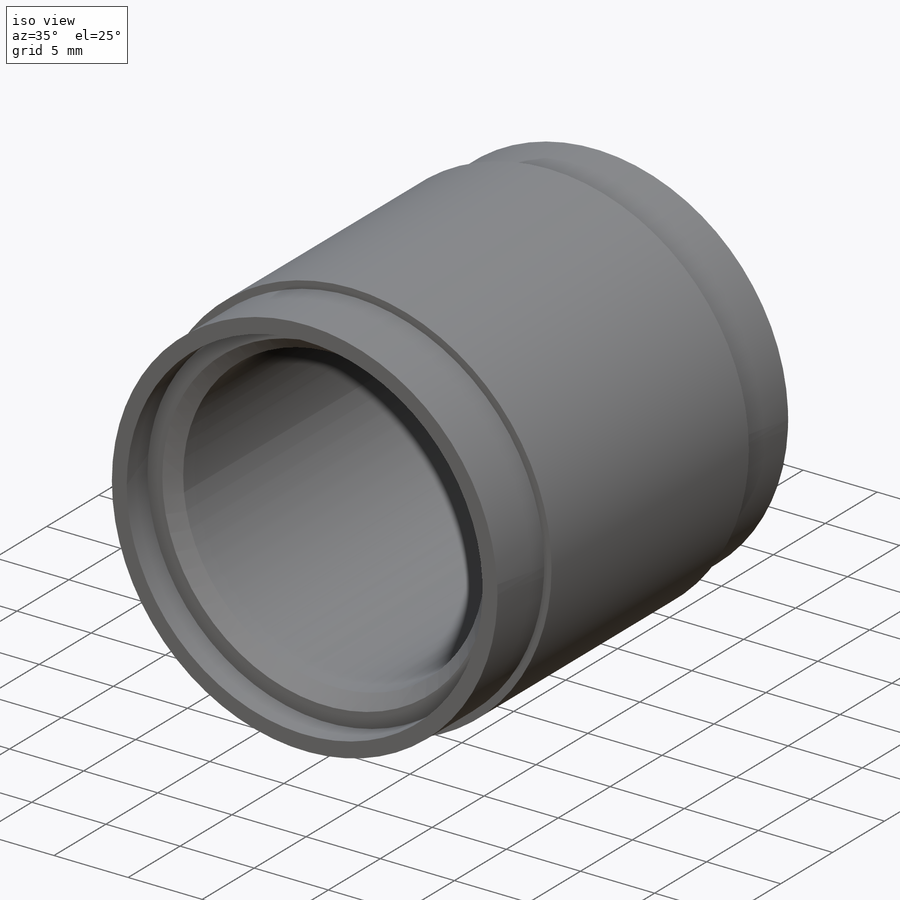
[diagram: iso view]
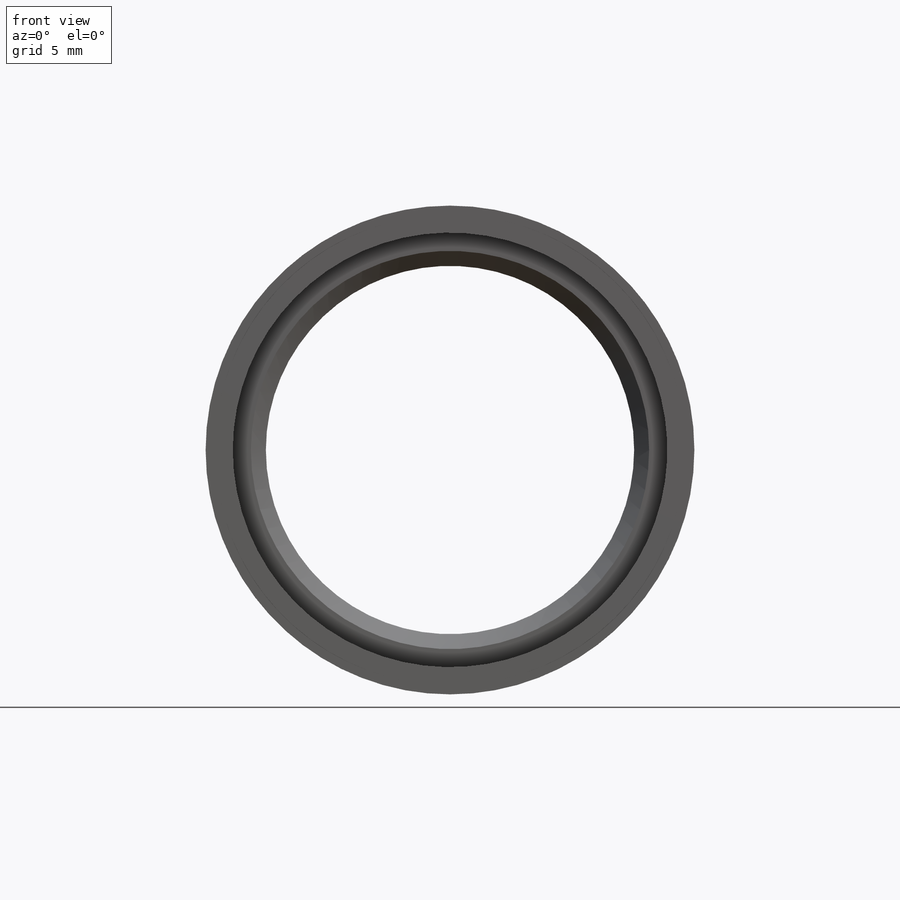
[diagram: front view]
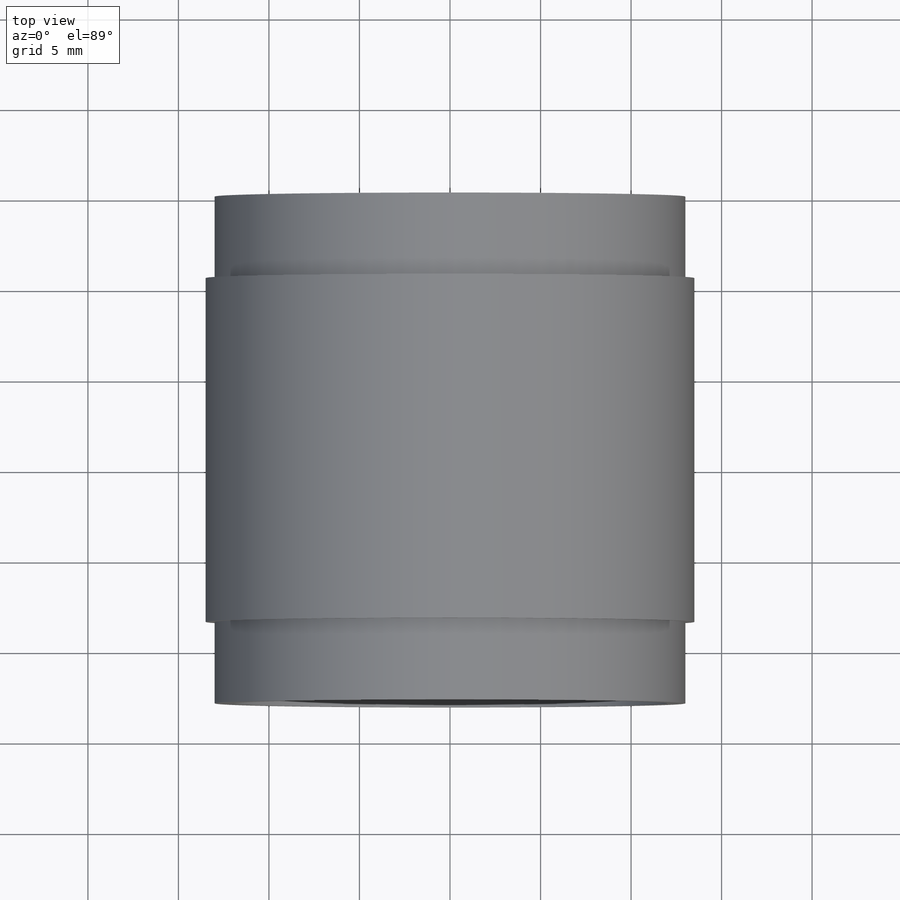
[diagram: top view]
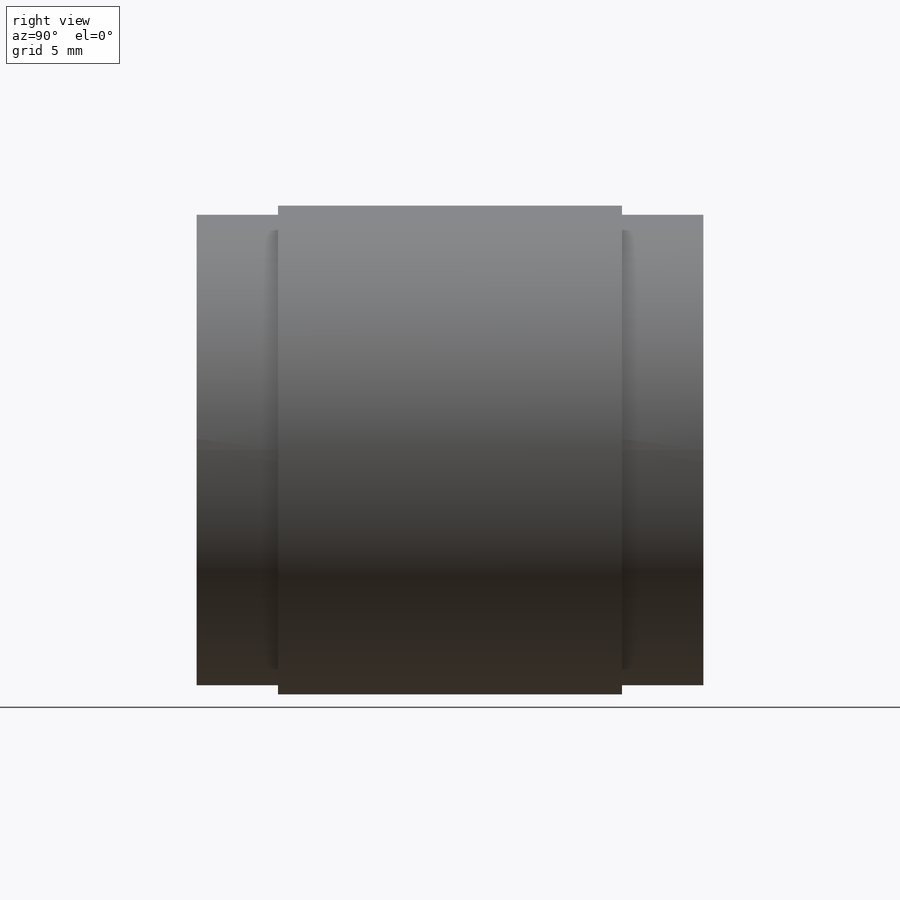
[diagram: right view]
SOLIDWORKS PART (.sldprt)
format: sldprt  version: not decoded by parser v0  size: 314,880 bytes
history: native  units: mm
features: sketch x4, plane x3, extrude x2, cut_extrude x2, material x1, mirror x1, thread x1, chamfer x1 (+9 scaffold rows collapsed)
feature tree (24):
  scaffold x9  (default folders/planes/origin — collapsed)
  material  "Сталь"
  plane  "Спереди"
  plane  "Сверху"
  plane  "Справа"
  sketch  "Эскиз2"  dims[D1=26.0mm]
  extrude  "Бобышка-Вытянуть1"  Depth=4.5mm
  sketch  "Эскиз3"  dims[D1=27.0mm]
  extrude  "Бобышка-Вытянуть2"  Depth=9.5mm
  sketch  "Эскиз4"  dims[D1=24.0mm]
  cut_extrude  "Вырез-Вытянуть1"  Depth=2mm
  mirror  "Зеркальное отражение4"
  sketch  "Эскиз5"  dims[D1=20.344mm]
  cut_extrude  "Вырез-Вытянуть2"  [1 undecoded]
  thread  "Условное изображение резьбы1"  Diameter=22mm  [1 undecoded]
  chamfer  "Фаска1"  Distance=0.828mm Angle=45deg
decode coverage: 9 of 11 modeling features carry decoded parameters
note: 2 parameter values undecoded
note: suppression state not decoded; provenance and decode notes live in map.json
